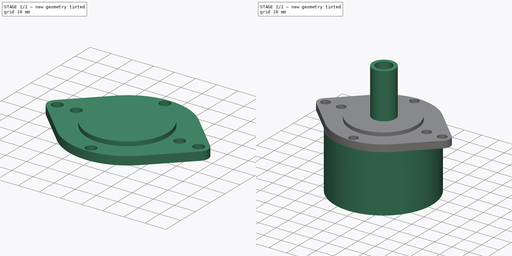
[diagram: build sequence overview — one tinted view per stage of 2, left to right]
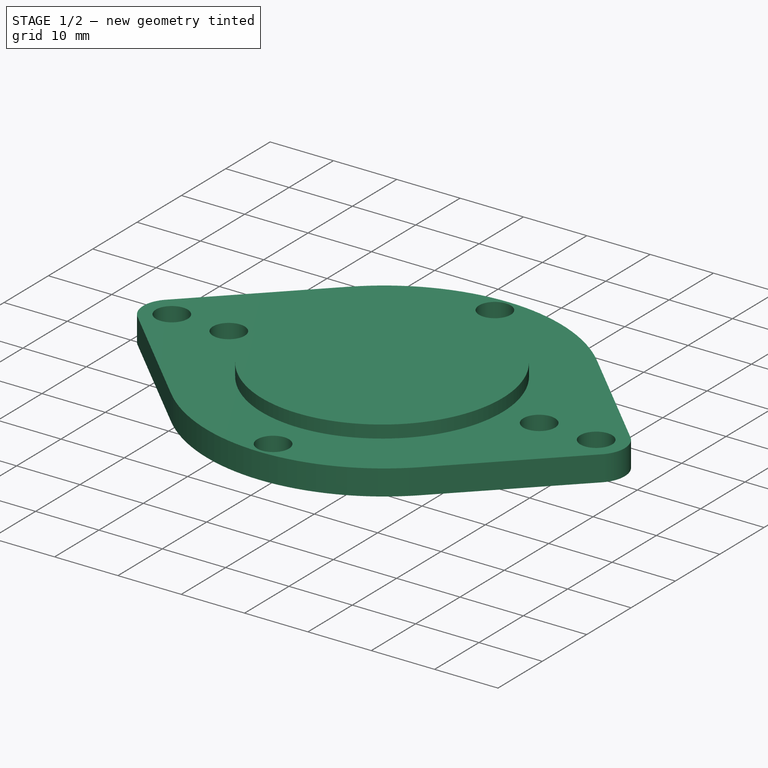
[diagram: stage 1 of 2 — iso view after this stage's code; geometry added in this stage tinted green]
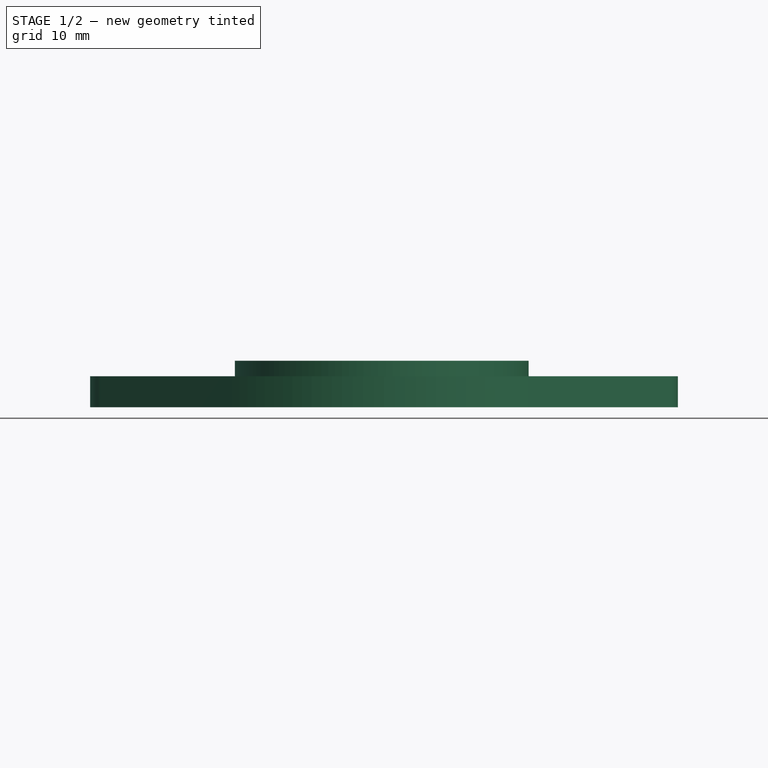
[diagram: stage 1 of 2 — front view after this stage's code; geometry added in this stage tinted green]
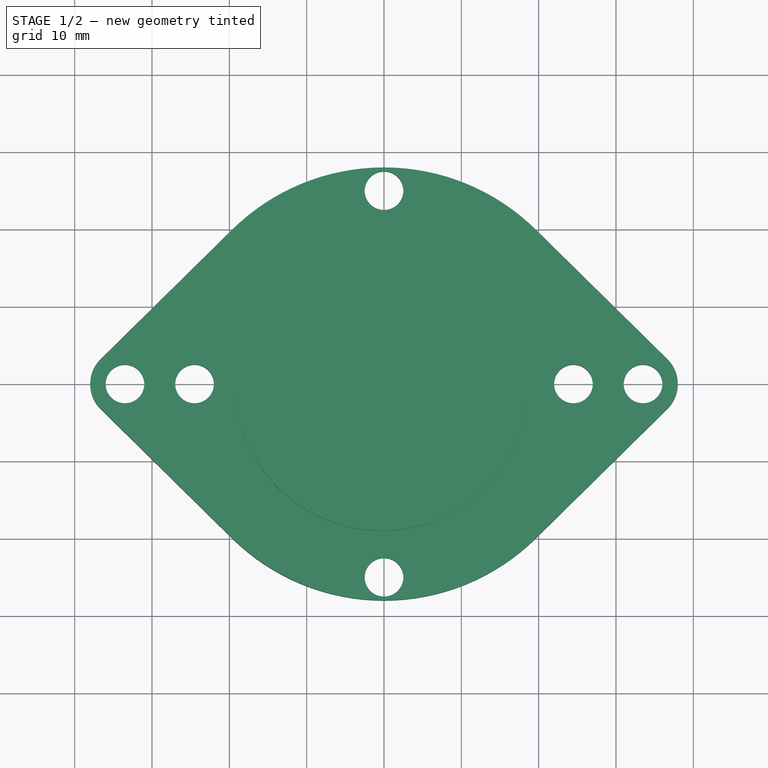
[diagram: stage 1 of 2 — top view after this stage's code; geometry added in this stage tinted green]
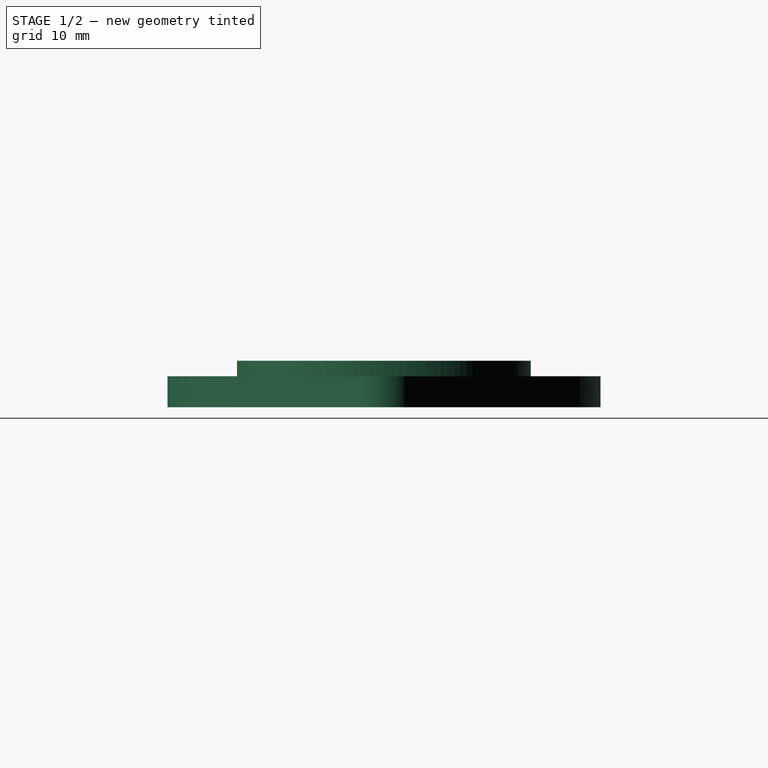
[diagram: stage 1 of 2 — right view after this stage's code; geometry added in this stage tinted green]
FCSTD DOCUMENT  (FreeCAD 0.15R4671 (Git))
Label: astrosyn-23LM-C240-H7
License: All rights reserved
LicenseURL: http://en.wikipedia.org/wiki/All_rights_reserved
objects: Sketcher::SketchObject×4, PartDesign::Pad×4
note: 12 computed .brp shape members not serialized (recipe doc carries the construction recipe); baked Part::Feature solids carry a one-line shape summary decoded from their .brp

FEATURE [Sketcher::SketchObject] Sketch
  sketch-geometry (14):
    g0: ArcOfCircle CenterX=0 CenterY=0 CenterZ=0 NormalX=0 NormalY=0 NormalZ=1 Radius=28 StartAngle=0.793307 EndAngle=2.34829
    g1: ArcOfCircle CenterX=0 CenterY=0 CenterZ=0 NormalX=0 NormalY=0 NormalZ=1 Radius=28 StartAngle=3.9349 EndAngle=5.48988
    g2: ArcOfCircle CenterX=-33.5 CenterY=0 CenterZ=0 NormalX=0 NormalY=0 NormalZ=1 Radius=4.5 StartAngle=2.34829 EndAngle=3.9349
    g3: ArcOfCircle CenterX=33.5 CenterY=0 CenterZ=0 NormalX=0 NormalY=0 NormalZ=1 Radius=4.5 StartAngle=5.48988 EndAngle=7.07649
    g4: LineSegment StartX=-36.6567 StartY=3.20705 StartZ=0 EndX=-19.6418 EndY=19.955 EndZ=0
    g5: LineSegment StartX=-36.6567 StartY=-3.20705 StartZ=0 EndX=-19.6418 EndY=-19.955 EndZ=0
    g6: LineSegment StartX=19.6418 StartY=19.955 StartZ=0 EndX=36.6567 EndY=3.20705 EndZ=0
    g7: LineSegment StartX=36.6567 StartY=-3.20705 StartZ=0 EndX=19.6418 EndY=-19.955 EndZ=0
    g8: Circle CenterX=-33.5 CenterY=0 CenterZ=0 NormalX=0 NormalY=0 NormalZ=1 Radius=2.5
    g9: Circle CenterX=33.5 CenterY=0 CenterZ=0 NormalX=0 NormalY=0 NormalZ=1 Radius=2.5
    g10: Circle CenterX=24.5 CenterY=0 CenterZ=0 NormalX=0 NormalY=0 NormalZ=1 Radius=2.5
    g11: Circle CenterX=-24.5 CenterY=0 CenterZ=0 NormalX=0 NormalY=0 NormalZ=1 Radius=2.5
    g12: Circle CenterX=0 CenterY=25 CenterZ=0 NormalX=0 NormalY=0 NormalZ=1 Radius=2.5
    g13: Circle CenterX=0 CenterY=-25 CenterZ=0 NormalX=0 NormalY=0 NormalZ=1 Radius=2.5
  constraints (35):
    c: Coincident(g0,g-1)
    c: Coincident(g1,g-1)
    c: PointOnObject(g2,g-1)
    c: PointOnObject(g3,g-1)
    c: Tangent(g4,g0) = 1.5708
    c: Tangent(g4,g2) = 1.5708
    c: Tangent(g2,g5) = -1.5708
    c: Tangent(g5,g1) = -1.5708
    c: Tangent(g1,g7) = 1.5708
    c: Tangent(g7,g3) = 1.5708
    c: Tangent(g3,g6) = 1.5708
    c: Tangent(g6,g0) = 1.5708
    c: Radius(g0) = 28
    c: Equal(g0,g1)
    c: Equal(g3,g2)
    c: Radius(g2) = 4.5
    c: Equal(g4,g6)
    c: Equal(g5,g7)
    c: PointOnObject(g8,g-1)
    c: Equal(g9,g8)
    c: Radius(g9) = 2.5
    c: Symmetric(g9,g8,g-2)
    c: DistanceX(g8,g9) = 67
    c: PointOnObject(g10,g-1)
    c: PointOnObject(g11,g-1)
    c: Equal(g11,g10)
    c: Symmetric(g10,g11,g-2)
    c: Radius(g10) = 2.5
    c: Coincident(g3,g9)
    c: DistanceX(g3,g10) = -9
    c: PointOnObject(g12,g-2)
    c: Radius(g12) = 2.5
    c: DistanceY(g-1,g12) = 25
    c: Equal(g13,g12)
    c: Symmetric(g13,g12,g-1)
FEATURE [PartDesign::Pad] Pad
  Length = 4
  Length2 = 100
  Midplane = true
  Sketch = -> Sketch
  Type = 0
FEATURE [Sketcher::SketchObject] Sketch001
  Placement = pos=(0,0,2) rot=(0,0,1;0rad)
  Support = -> Pad [Face16]
  sketch-geometry (1):
    g0: Circle CenterX=-0.290907 CenterY=-0.018148 CenterZ=0 NormalX=0 NormalY=0 NormalZ=1 Radius=19
  constraints (1):
    c: Radius(g0) = 19
FEATURE [PartDesign::Pad] Pad001
  Length = 2
  Length2 = 100
  Sketch = -> Sketch001
  Type = 0
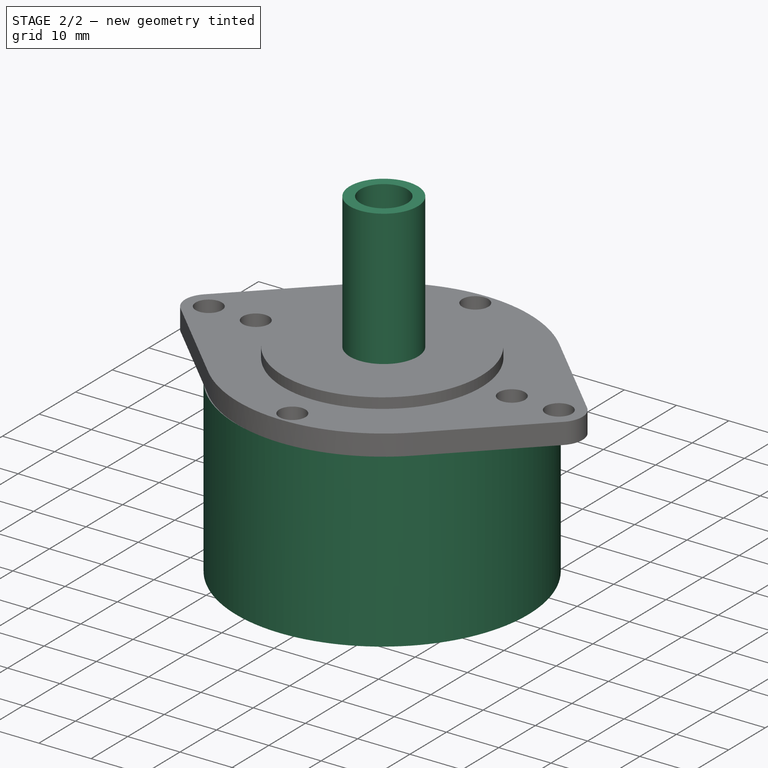
[diagram: stage 2 of 2 — iso view after this stage's code; geometry added in this stage tinted green]
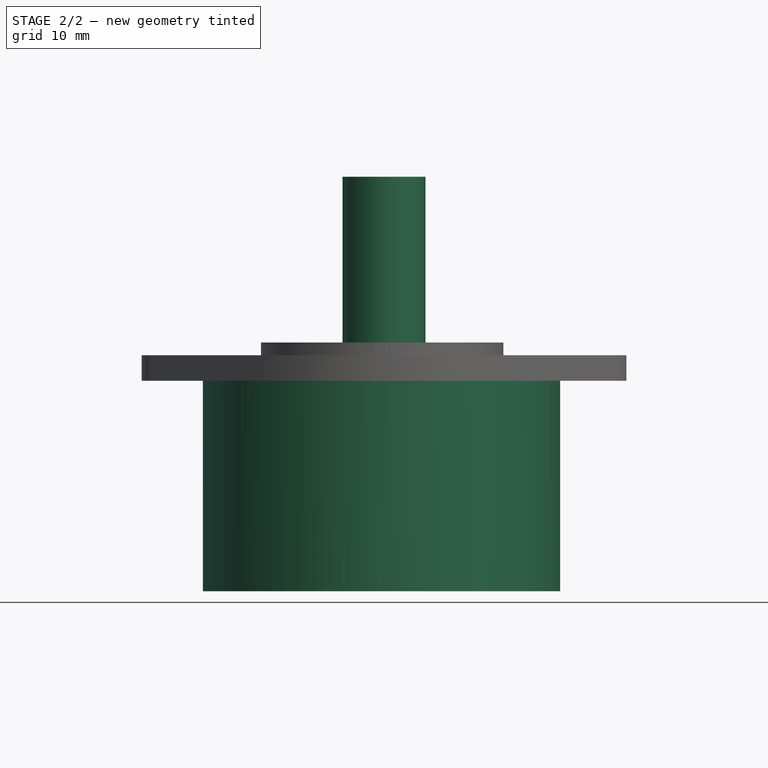
[diagram: stage 2 of 2 — front view after this stage's code; geometry added in this stage tinted green]
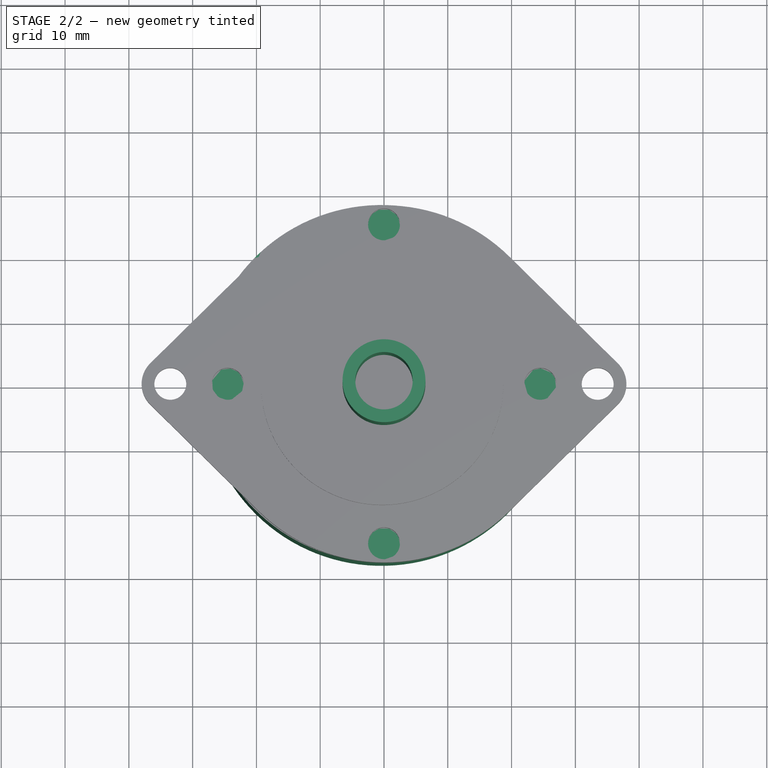
[diagram: stage 2 of 2 — top view after this stage's code; geometry added in this stage tinted green]
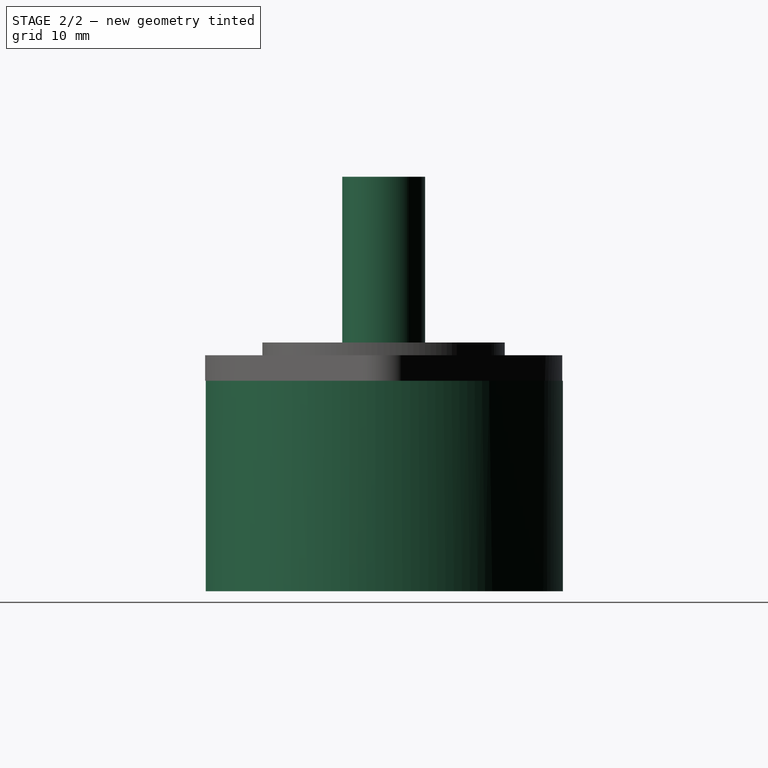
[diagram: stage 2 of 2 — right view after this stage's code; geometry added in this stage tinted green]
FEATURE [Sketcher::SketchObject] Sketch002
  Placement = pos=(0,0,4) rot=(0,0,1;0rad)
  Support = -> Pad001 [Face18]
  sketch-geometry (2):
    g0: Circle CenterX=0 CenterY=0 CenterZ=0 NormalX=0 NormalY=0 NormalZ=1 Radius=6.5
    g1: Circle CenterX=0 CenterY=0 CenterZ=0 NormalX=0 NormalY=0 NormalZ=1 Radius=4.5
  constraints (4):
    c: Coincident(g0,g-1)
    c: Radius(g0) = 6.5
    c: Coincident(g1,g-1)
    c: Radius(g1) = 4.5
FEATURE [PartDesign::Pad] Pad002
  Length = 26
  Length2 = 100
  Sketch = -> Sketch002
  Type = 0
FEATURE [Sketcher::SketchObject] Sketch003
  Placement = pos=(0,0,-2) rot=(1,0,0;3.14159rad)
  Support = -> Pad002 [Face4]
  sketch-geometry (1):
    g0: Circle CenterX=-0.396294 CenterY=-0.105837 CenterZ=0 NormalX=0 NormalY=0 NormalZ=1 Radius=28
  constraints (1):
    c: Radius(g0) = 28
FEATURE [PartDesign::Pad] Pad003  label="stepper"
  Length = 33
  Length2 = 100
  Sketch = -> Sketch003
  Type = 0
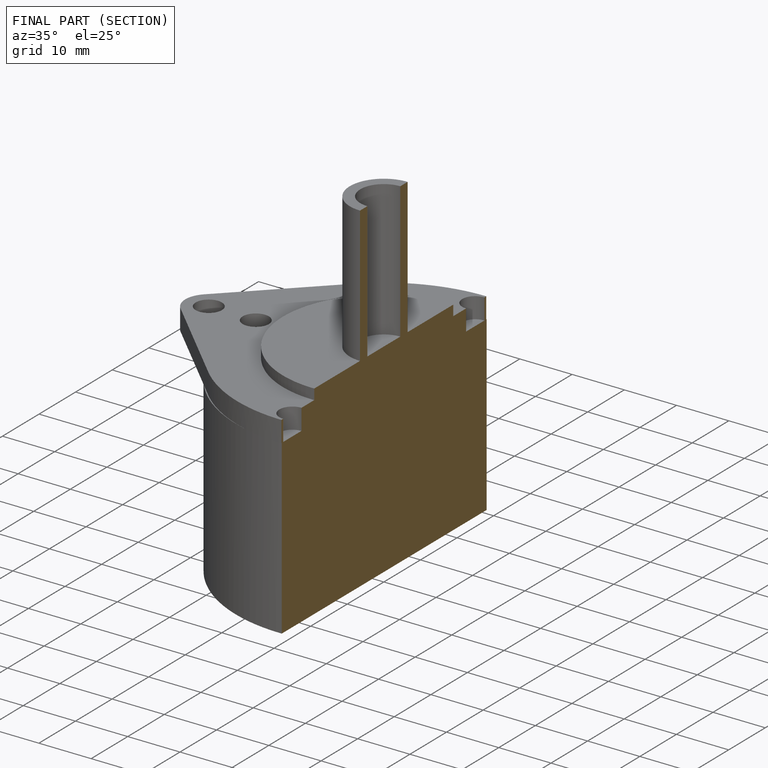
[diagram: finished part — half-section view (interior)]
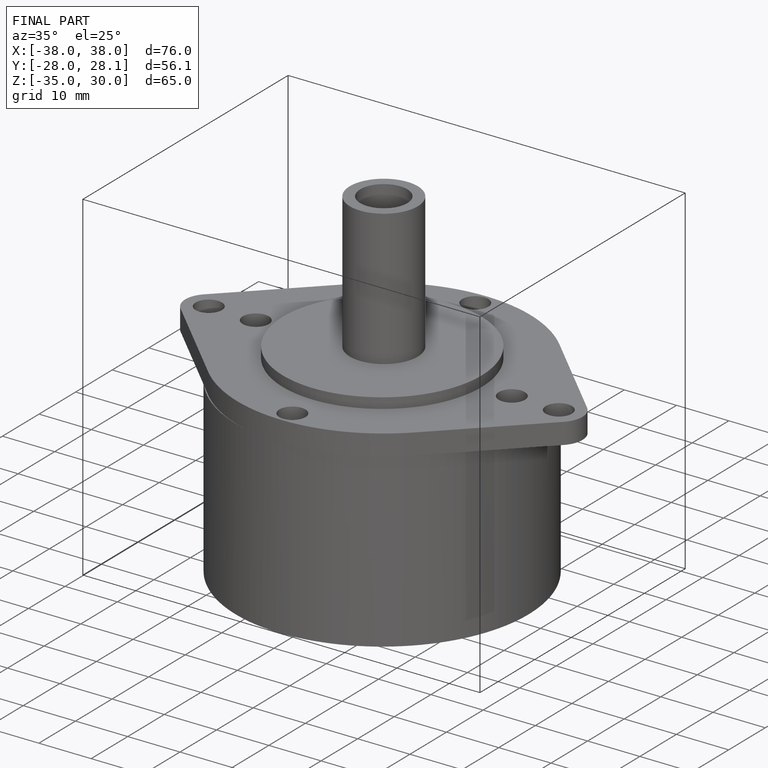
[diagram: finished part — iso view with bounding-box wireframe]
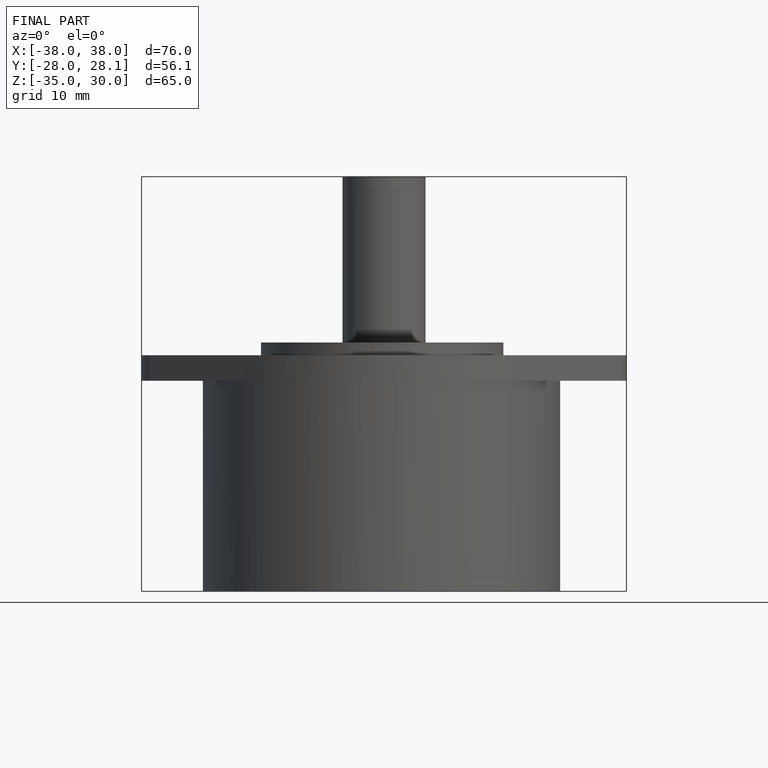
[diagram: finished part — front view with bounding-box wireframe]
